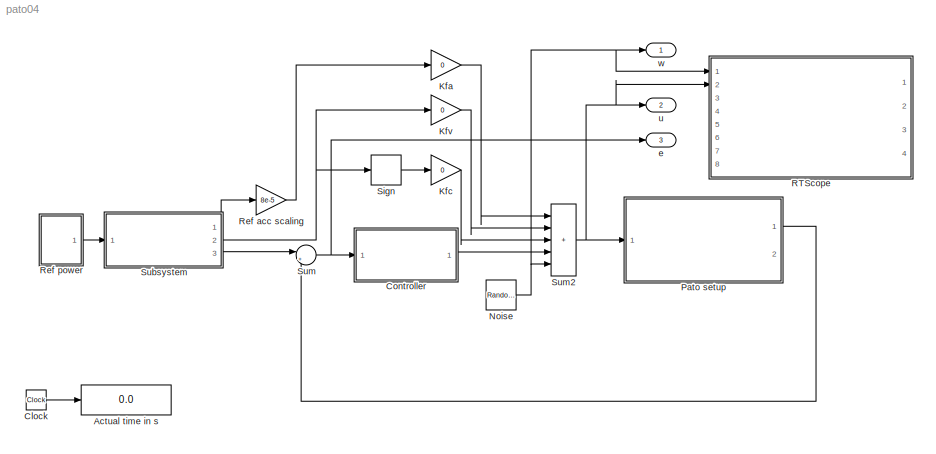
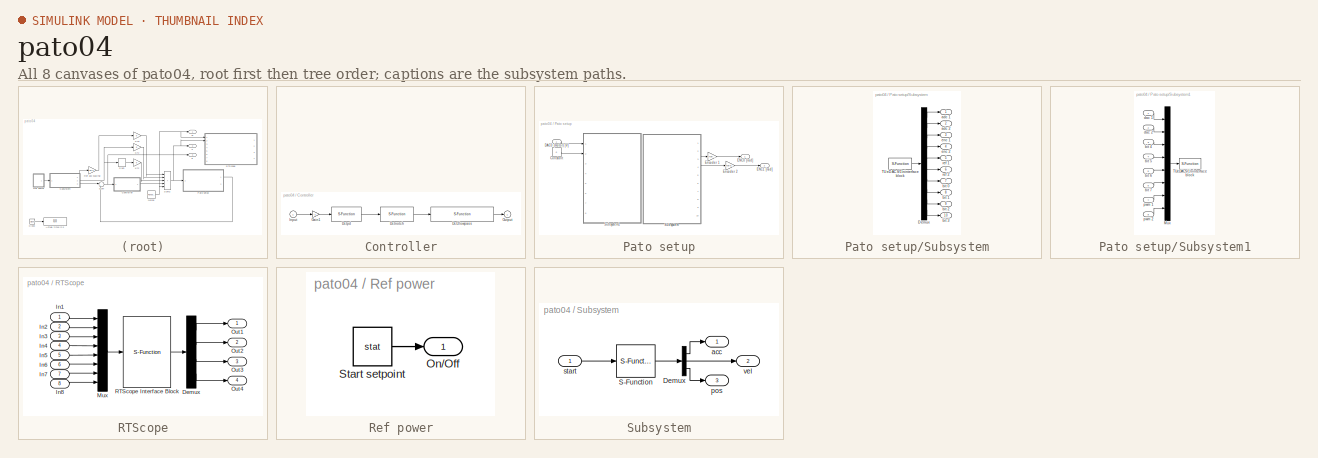
[diagram: thumbnail index - all 8 canvases of the model, root first then tree order]
MODEL pato04
KIND model
CONFIG AbsTol = auto
CONFIG FixedStep = 1/4096
CONFIG MaxStep = auto
CONFIG MinStep = auto
CONFIG RelTol = 1e-3
CONFIG Solver = ode1
CONFIG SolverMode = Auto
CONFIG StartTime = 0.0
CONFIG StopTime = 3600
BLOCK [Display] Actual time in s
  Decimation = 1
  Floating = off
  Format = short
  Ports = [1]
  SampleTime = -1
BLOCK [Clock] Clock
  Decimation = 10
  DisplayTime = off
BLOCK [SubSystem] Controller
  MaskCallbackString = |||||||
  MaskDescription = The controller consists of three filters: a Kp/Kv, a notch and a roll-off filter.\nYou can edit the parameters below.
  MaskEnableString = on,on,on,on,on,on,on,on
  MaskIconFrame = on
  MaskIconOpaque = on
  MaskIconRotate = none
  MaskIconUnits = autoscale
  MaskPromptString = Kp|Kv|Notch zeros [Hz]|Notch damping zeros [-]|Notch poles [Hz]|Notch damping poles [-]|Roll-off poles [Hz]|Roll-off damping poles [-]
  MaskStyleString = edit,edit,edit,edit,edit,edit,edit,edit
  MaskToolTipString = on,on,on,on,on,on,on,on
  MaskTunableValueString = on,on,on,on,on,on,on,on
  MaskType = Controller
  MaskValueString = 2|.01|300|0.1|300|0.1|300|0.2
  MaskVariableAliases = ,,,,,,,
  MaskVariables = Kp=@1;Kv=@2;notch_zeros=@3;notch_damping_zeros=@4;notch_poles=@5;notch_damping_poles=@6;roll_off_poles=@7;roll_off_damping_poles=@8;
  MaskVisibilityString = on,on,on,on,on,on,on,on
  Ports = [1, 1]
  RTWFcnNameOpts = Auto
  RTWFileNameOpts = Auto
  RTWSystemCode = Auto
  ShowPortLabels = on
  TreatAsAtomicUnit = off
BLOCK [S-Function] Controller/Dct2lowpass
  FunctionName = dlowpass2
  MaskCallbackString = |
  MaskDescription = This block implements a discrete time 2nd order lowpass filter.
  MaskDisplay = disp('DCT 2nd order lowpass')
  MaskEnableString = on,on
  MaskIconFrame = on
  MaskIconOpaque = on
  MaskIconRotate = none
  MaskIconUnits = autoscale
  MaskPromptString = Pole [Hz]|Damping pole [-]
  MaskStyleString = edit,edit
  MaskToolTipString = on,on
  MaskTunableValueString = on,on
  MaskType = dctools
  MaskValueString = roll_off_poles|roll_off_damping_poles
  MaskVariableAliases = ,
  MaskVariables = f_den=@1;b_den=@2;
  MaskVisibilityString = on,on
  Parameters = [f_den b_den 0.001]
  PortCounts = []
  Ports = [1, 1]
  SFunctionModules = ''
BLOCK [S-Function] Controller/Dctnotch
  FunctionName = dnotch
  MaskCallbackString = |||
  MaskDescription = This block implements a dicrete time 2nd order notch filter.
  MaskDisplay = disp('DCT notch')
  MaskEnableString = on,on,on,on
  MaskIconFrame = on
  MaskIconOpaque = on
  MaskIconRotate = none
  MaskIconUnits = autoscale
  MaskPromptString = Zero [Hz]|Damping zero [-]|Pole [Hz]|Damping pole [-]
  MaskStyleString = edit,edit,edit,edit
  MaskToolTipString = on,on,on,on
  MaskTunableValueString = on,on,on,on
  MaskType = dctools
  MaskValueString = notch_zeros|notch_damping_zeros|notch_poles|notch_damping_poles
  MaskVariableAliases = ,,,
  MaskVariables = f_num=@1;b_num=@2;f_den=@3;b_den=@4;
  MaskVisibilityString = on,on,on,on
  Parameters = [f_num b_num f_den b_den 0.001]
  PortCounts = []
  Ports = [1, 1]
  SFunctionModules = ''
BLOCK [S-Function] Controller/Dctpd
  FunctionName = dpd
  MaskCallbackString = |
  MaskDescription = This block implements a discrete time pd filter.
  MaskDisplay = disp('DCT pd')
  MaskEnableString = on,on
  MaskIconFrame = on
  MaskIconOpaque = on
  MaskIconRotate = none
  MaskIconUnits = autoscale
  MaskPromptString = Kp|Kv
  MaskStyleString = edit,edit
  MaskToolTipString = on,on
  MaskTunableValueString = on,on
  MaskType = dctools
  MaskValueString = Kp|Kv
  MaskVariableAliases = ,
  MaskVariables = kp=@1;kv=@2;
  MaskVisibilityString = on,on
  Parameters = [kp kv 0.001]
  PortCounts = []
  Ports = [1, 1]
  SFunctionModules = ''
BLOCK [Gain] Controller/Gain1
  Gain = -1
  Multiplication = Element-wise(K.*u)
  SaturateOnIntegerOverflow = on
BLOCK [Inport] Controller/Input
  Interpolate = on
  LatchInput = off
  Port = 1
BLOCK [Outport] Controller/Output
  InitialOutput = []
  OutputWhenDisabled = held
  Port = 1
BLOCK [Gain] Kfa
  Gain = 0
  Multiplication = Element-wise(K.*u)
  SaturateOnIntegerOverflow = on
BLOCK [Gain] Kfc
  Gain = 0
  Multiplication = Element-wise(K.*u)
  SaturateOnIntegerOverflow = on
BLOCK [Gain] Kfv
  Gain = 0
  Multiplication = Element-wise(K.*u)
  SaturateOnIntegerOverflow = on
BLOCK [RandomNumber] Noise
  Mean = 0
  SampleTime = 0
  Seed = 0
  Variance = 0.2
  VectorParams1D = on
BLOCK [SubSystem] Pato setup
  MaskDescription = Inc encoder positions 1-2 [rad] (see connector pannel).\n
  MaskIconFrame = off
  MaskIconOpaque = on
  MaskIconRotate = none
  MaskIconUnits = autoscale
  MaskType = Encoders
  Ports = [1, 2]
  RTWFcnNameOpts = Auto
  RTWFileNameOpts = Auto
  RTWSystemCode = Auto
  ShowPortLabels = on
  TreatAsAtomicUnit = off
BLOCK [Constant] Pato setup/Constant
  Value = 0
  VectorParams1D = on
BLOCK [Inport] Pato setup/DAC0 (motor) [V]
  Interpolate = on
  LatchInput = off
  Port = 1
BLOCK [Outport] Pato setup/ENC0 [rad]
  InitialOutput = []
  OutputWhenDisabled = held
  Port = 1
BLOCK [Outport] Pato setup/ENC1 [rad]
  InitialOutput = []
  OutputWhenDisabled = held
  Port = 2
BLOCK [Gain] Pato setup/Encoder 1
  Gain = -2*pi/(500*4)
  Multiplication = Element-wise(K.*u)
  SaturateOnIntegerOverflow = on
BLOCK [Gain] Pato setup/Encoder 2
  Gain = 2*pi/(500*4)
  Multiplication = Element-wise(K.*u)
  SaturateOnIntegerOverflow = on
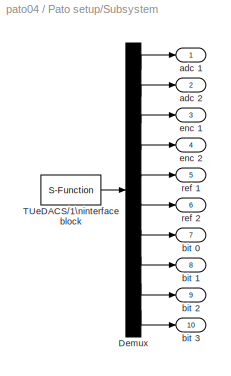
BLOCK [SubSystem] Pato setup/Subsystem
  MaskCallbackString = |||||||||
  MaskDescription = This block models the TUeDACS/1 QAD/AQI inports.\n\nQAD:\n- front panel channels are named 0/1 instead of 1/2\n- ADC input range is fixed at +/- 2.5 V\n\nAQI:\n- scalable ADC input range\n
  MaskDisplay = disp('TUeDACS/1 QAD/AQI');\ndisp('\\n\\nInports block');\n\n
  MaskEnableString = on,on,on,on,on,on,on,on,on,on
  MaskHelp = This block models the TUeDACS/1 QAD/AQI inports.
  MaskIconFrame = off
  MaskIconOpaque = off
  MaskIconRotate = none
  MaskIconUnits = autoscale
  MaskPromptString = QAD/AQI identifier|Use ADC channel 1|ADC range select channel 1 (AQI only)|Use ADC channel 2|ADC range select channel 2 (AQI only)|Use ENC channel 1|ENC function select channel 1|Use ENC channel 2|ENC function select channel 2|Use DI channels
  MaskStyleString = popup(link0|link1),checkbox,popup(+/- 10 V|+/- 5 V|+/- 2 V|+/- 1 V|+/- 0.5 V|+/- 0.2 V|+/- 0.1 V),checkbox,popup(+/- 10 V|+/- 5 V|+/- 2 V|+/- 1 V|+/- 0.5 V|+/- 0.2 V|+/- 0.1 V),checkbox,popup(Quadrature single ended|Quadrature differential (AQI only)|Event counter),checkbox,popup(Quadrature single ended|Quadrature differential (AQI only)|Event counter),checkbox
  MaskToolTipString = on,on,on,on,on,on,on,on,on,on
  MaskTunableValueString = on,on,on,on,on,on,on,on,on,on
  MaskType = TUeDACS/1 QAD/AQI Inports block
  MaskValueString = link0|off|+/- 10 V|off|+/- 10 V|on|Quadrature single ended|on|Quadrature single ended|off
  MaskVariableAliases = ,,,,,,,,,
  MaskVariables = ilink=@1;adc_active_ch1=@2;adc_range_select_ch1=@3;adc_active_ch2=@4;adc_range_select_ch2=@5;enc_active_ch1=@6;enc_funct_select_ch1=@7;enc_active_ch2=@8;enc_funct_select_ch2=@9;dio_active=@10;
  MaskVisibilityString = on,on,on,on,on,on,on,on,on,on
  Ports = [0, 10]
  RTWFcnNameOpts = Auto
  RTWFileNameOpts = Auto
  RTWSystemCode = Auto
  ShowPortLabels = on
  TreatAsAtomicUnit = off
BLOCK [Demux] Pato setup/Subsystem/Demux
  BusSelectionMode = off
  Outputs = 10
  Ports = [1, 10]
BLOCK [S-Function] Pato setup/Subsystem/TUeDACS//1\ninterface block
  FunctionName = td_inports
  Parameters = ilink, adc_active_ch1, adc_active_ch2, enc_active_ch1, enc_active_ch2, dio_active, adc_range_select_ch1, adc_range_select_ch2, enc_funct_select_ch1, enc_funct_select_ch2
  PortCounts = []
  Ports = [0, 1]
  SFunctionModules = ''
BLOCK [Outport] Pato setup/Subsystem/adc 1
  InitialOutput = []
  OutputWhenDisabled = held
  Port = 1
BLOCK [Outport] Pato setup/Subsystem/adc 2
  InitialOutput = []
  OutputWhenDisabled = held
  Port = 2
BLOCK [Outport] Pato setup/Subsystem/bit 0
  InitialOutput = []
  OutputWhenDisabled = held
  Port = 7
BLOCK [Outport] Pato setup/Subsystem/bit 1
  InitialOutput = []
  OutputWhenDisabled = held
  Port = 8
BLOCK [Outport] Pato setup/Subsystem/bit 2
  InitialOutput = []
  OutputWhenDisabled = held
  Port = 9
BLOCK [Outport] Pato setup/Subsystem/bit 3
  InitialOutput = []
  OutputWhenDisabled = held
  Port = 10
BLOCK [Outport] Pato setup/Subsystem/enc 1
  InitialOutput = []
  OutputWhenDisabled = held
  Port = 3
BLOCK [Outport] Pato setup/Subsystem/enc 2
  InitialOutput = []
  OutputWhenDisabled = held
  Port = 4
BLOCK [Outport] Pato setup/Subsystem/ref 1
  InitialOutput = []
  OutputWhenDisabled = held
  Port = 5
BLOCK [Outport] Pato setup/Subsystem/ref 2
  InitialOutput = []
  OutputWhenDisabled = held
  Port = 6
BLOCK [SubSystem] Pato setup/Subsystem1
  MaskCallbackString = |||||||||||
  MaskDescription = This block models the TUeDACS/1 QAD/AQI outports.\n\nQAD:\n- front panel channels are named 0/1 instead of 1/2\n- DAC output range is +/- 2.5 V\n\nAQI:\n- DAC output range is +/- 5V.\n- scalable ADC input range\n
  MaskDisplay = disp('TUeDACS/1 QAD/AQI');\ndisp('\\n\\nOutports block');\n\n
  MaskEnableString = on,on,on,on,on,on,on,on,on,on,on,on
  MaskHelp = This block models the TUeDACS/1 QAD/AQI outports.
  MaskIconFrame = off
  MaskIconOpaque = off
  MaskIconRotate = none
  MaskIconUnits = autoscale
  MaskPromptString = QAD/AQI identifier|Use DAC channel 1|DAC hold order select channel 1|Use DAC channel 2|DAC hold order select channel 2|Use DO channels|Use PWM channel 1 (AQI only)|PWM function select channel 1|PWM frequency select channel 1|Use PWM channel 2 (AQI only)|PWM function select channel 2|PWM frequency select channel 2
  MaskStyleString = popup(link0|link1),checkbox,popup(Zero order (SW)|First order (SW)|Second order (SW)|Third order (SW)),checkbox,popup(Zero order (SW)|First order (SW)|Second order (SW)|Third order (SW)),checkbox,checkbox,popup(Locked anti-phase PWM (0 to 1)|Sign/magnitude PWM (-1 to 1)),popup(1 Hz|10 Hz|50 Hz|100 Hz|1 kHz|10 kHz|100 kHz|1 MHz),checkbox,popup(Locked anti-phase PWM (0 to 1)|Sign/magnitude PWM (-1 t...<+63ch>
  MaskToolTipString = on,on,on,on,on,on,on,on,on,on,on,on
  MaskTunableValueString = on,on,on,on,on,on,on,on,on,on,on,on
  MaskType = TUeDACS/1 QAD/AQI Outports block
  MaskValueString = link0|on|Zero order (SW)|off|Zero order (SW)|off|off|Locked anti-phase PWM (0 to 1)|10 kHz|off|Locked anti-phase PWM (0 to 1)|10 kHz
  MaskVariableAliases = ,,,,,,,,,,,
  MaskVariables = ilink=@1;dac_active_ch1=@2;dac_hold_order_select_ch1=@3;dac_active_ch2=@4;dac_hold_order_select_ch2=@5;dio_active=@6;pwm_active_ch1=@7;pwm_funct_select_ch1=@8;pwm_freq_select_ch1=@9;pwm_active_ch2=@10;pwm_funct_select_ch2=@11;pwm_freq_select_ch2=@12;
  MaskVisibilityString = on,on,on,on,on,on,on,on,on,on,on,on
  Ports = [8]
  RTWFcnNameOpts = Auto
  RTWFileNameOpts = Auto
  RTWSystemCode = Auto
  ShowPortLabels = on
  TreatAsAtomicUnit = off
BLOCK [Mux] Pato setup/Subsystem1/Mux
  DisplayOption = bar
  Inputs = 8
  Ports = [8, 1]
BLOCK [S-Function] Pato setup/Subsystem1/TUeDACS//1\ninterface block
  FunctionName = td_outports
  Parameters = ilink, dac_active_ch1, dac_hold_order_select_ch1, dac_active_ch2, dac_hold_order_select_ch2, dio_active, pwm_active_ch1, pwm_active_ch2, pwm_funct_select_ch1, pwm_funct_select_ch2, pwm_freq_select_ch1, pwm_freq_select_ch2
  PortCounts = []
  Ports = [1]
  SFunctionModules = ''
BLOCK [Inport] Pato setup/Subsystem1/bit 4
  Interpolate = on
  LatchInput = off
  Port = 3
BLOCK [Inport] Pato setup/Subsystem1/bit 5
  Interpolate = on
  LatchInput = off
  Port = 4
BLOCK [Inport] Pato setup/Subsystem1/bit 6
  Interpolate = on
  LatchInput = off
  Port = 5
BLOCK [Inport] Pato setup/Subsystem1/bit 7
  Interpolate = on
  LatchInput = off
  Port = 6
BLOCK [Inport] Pato setup/Subsystem1/dac 1
  Interpolate = on
  LatchInput = off
  Port = 1
BLOCK [Inport] Pato setup/Subsystem1/dac 2
  Interpolate = on
  LatchInput = off
  Port = 2
BLOCK [Inport] Pato setup/Subsystem1/pwm 1
  Interpolate = on
  LatchInput = off
  Port = 7
BLOCK [Inport] Pato setup/Subsystem1/pwm 2
  Interpolate = on
  LatchInput = off
  Port = 8
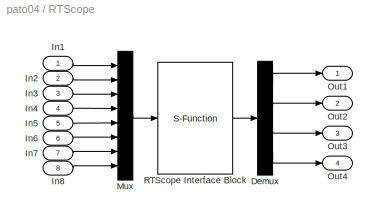
BLOCK [SubSystem] RTScope
  MaskDisplay = image(imread('rtscope2.jpg'))
  MaskIconFrame = on
  MaskIconOpaque = on
  MaskIconRotate = none
  MaskIconUnits = autoscale
  MaskType = RTScope
  OpenFcn = rtscope
  Ports = [8, 4]
  RTWFcnNameOpts = Auto
  RTWFileNameOpts = Auto
  RTWSystemCode = Auto
  ShowPortLabels = on
  TreatAsAtomicUnit = off
BLOCK [Demux] RTScope/Demux
  BusSelectionMode = off
  Outputs = 4
  Ports = [1, 4]
BLOCK [Inport] RTScope/In1
  Interpolate = on
  LatchInput = off
  Port = 1
BLOCK [Inport] RTScope/In2
  Interpolate = on
  LatchInput = off
  Port = 2
BLOCK [Inport] RTScope/In3
  Interpolate = on
  LatchInput = off
  Port = 3
BLOCK [Inport] RTScope/In4
  Interpolate = on
  LatchInput = off
  Port = 4
BLOCK [Inport] RTScope/In5
  Interpolate = on
  LatchInput = off
  Port = 5
BLOCK [Inport] RTScope/In6
  Interpolate = on
  LatchInput = off
  Port = 6
BLOCK [Inport] RTScope/In7
  Interpolate = on
  LatchInput = off
  Port = 7
BLOCK [Inport] RTScope/In8
  Interpolate = on
  LatchInput = off
  Port = 8
BLOCK [Mux] RTScope/Mux
  DisplayOption = bar
  Inputs = 8
  Ports = [8, 1]
BLOCK [Outport] RTScope/Out1
  InitialOutput = []
  OutputWhenDisabled = held
  Port = 1
BLOCK [Outport] RTScope/Out2
  InitialOutput = []
  OutputWhenDisabled = held
  Port = 2
BLOCK [Outport] RTScope/Out3
  InitialOutput = []
  OutputWhenDisabled = held
  Port = 3
BLOCK [Outport] RTScope/Out4
  InitialOutput = []
  OutputWhenDisabled = held
  Port = 4
BLOCK [S-Function] RTScope/RTScope Interface Block
  FunctionName = sf_qadscope
  OpenFcn = rtscope
  Parameters = 4000
  PortCounts = []
  Ports = [1, 1]
  SFunctionModules = ''
BLOCK [Gain] Ref acc scaling 
  Gain = 8e-5
  Multiplication = Element-wise(K.*u)
  SaturateOnIntegerOverflow = on
BLOCK [SubSystem] Ref power
  MaskEnableString = on
  MaskIconFrame = on
  MaskIconOpaque = off
  MaskIconRotate = none
  MaskIconUnits = autoscale
  MaskPromptString = Switch
  MaskStyleString = popup(On|Off)
  MaskToolTipString = on
  MaskTunableValueString = on
  MaskType = On/Off Switch
  MaskValueString = Off
  MaskVariables = stat=@1;
  MaskVisibilityString = on
  Ports = [0, 1]
  RTWFcnNameOpts = Auto
  RTWFileNameOpts = Auto
  RTWSystemCode = Auto
  ShowPortLabels = on
  TreatAsAtomicUnit = off
BLOCK [Outport] Ref power/On//Off
  InitialOutput = []
  OutputWhenDisabled = held
  Port = 1
BLOCK [Constant] Ref power/Start setpoint
  Value = stat
  VectorParams1D = on
BLOCK [Signum] Sign
BLOCK [SubSystem] Subsystem
  MaskDisplay = disp('Ref3');\n
  MaskIconFrame = off
  MaskIconOpaque = off
  MaskIconRotate = none
  MaskIconUnits = autoscale
  MaskType = Ref3
  OpenFcn = global ref_part; cb_axes 1
  Ports = [1, 3]
  RTWFcnNameOpts = Auto
  RTWFileNameOpts = Auto
  RTWSystemCode = Auto
  ShowPortLabels = on
  TreatAsAtomicUnit = off
BLOCK [Demux] Subsystem/Demux
  BusSelectionMode = off
  Outputs = 3
  Ports = [1, 3]
BLOCK [S-Function] Subsystem/S-Function
  FunctionName = ref3b
  OpenFcn = global ref_part; r3g_main
  Parameters = ref_part
  PortCounts = []
  Ports = [1, 1]
  SFunctionModules = ''
BLOCK [Outport] Subsystem/acc
  InitialOutput = []
  OutputWhenDisabled = held
  Port = 1
BLOCK [Outport] Subsystem/pos
  InitialOutput = []
  OutputWhenDisabled = held
  Port = 3
BLOCK [Inport] Subsystem/start
  Interpolate = on
  LatchInput = off
  Port = 1
BLOCK [Outport] Subsystem/vel
  InitialOutput = []
  OutputWhenDisabled = held
  Port = 2
BLOCK [Sum] Sum
  IconShape = round
  Inputs = |+-
  Ports = [2, 1]
  SaturateOnIntegerOverflow = on
BLOCK [Sum] Sum2
  Description = sumff
  IconShape = rectangular
  Inputs = |+++++
  Ports = [5, 1]
  SaturateOnIntegerOverflow = on
BLOCK [Outport] e
  InitialOutput = []
  OutputWhenDisabled = held
  Port = 3
BLOCK [Outport] u
  InitialOutput = []
  OutputWhenDisabled = held
  Port = 2
BLOCK [Outport] w
  InitialOutput = []
  OutputWhenDisabled = held
  Port = 1
LINE Clock:1 -> Actual time in s:1
LINE Controller/Dct2lowpass:1 -> Controller/Output:1
LINE Controller/Dctnotch:1 -> Controller/Dct2lowpass:1
LINE Controller/Dctpd:1 -> Controller/Dctnotch:1
LINE Controller/Gain1:1 -> Controller/Dctpd:1
LINE Controller/Input:1 -> Controller/Gain1:1
LINE Controller:1 -> Sum2:4
LINE Kfa:1 -> Sum2:1
LINE Kfc:1 -> Sum2:3
LINE Kfv:1 -> Sum2:2
NET Noise:1 -> RTScope:1, Sum2:5, w:1
LINE Pato setup/Constant:1 -> Pato setup/Subsystem1:2
LINE Pato setup/DAC0 (motor) [V]:1 -> Pato setup/Subsystem1:1
LINE Pato setup/Encoder 1:1 -> Pato setup/ENC0 [rad]:1
LINE Pato setup/Encoder 2:1 -> Pato setup/ENC1 [rad]:1
LINE Pato setup/Subsystem/Demux:1 -> Pato setup/Subsystem/adc 1:1
LINE Pato setup/Subsystem/Demux:10 -> Pato setup/Subsystem/bit 3:1
LINE Pato setup/Subsystem/Demux:2 -> Pato setup/Subsystem/adc 2:1
LINE Pato setup/Subsystem/Demux:3 -> Pato setup/Subsystem/enc 1:1
LINE Pato setup/Subsystem/Demux:4 -> Pato setup/Subsystem/enc 2:1
LINE Pato setup/Subsystem/Demux:5 -> Pato setup/Subsystem/ref 1:1
LINE Pato setup/Subsystem/Demux:6 -> Pato setup/Subsystem/ref 2:1
LINE Pato setup/Subsystem/Demux:7 -> Pato setup/Subsystem/bit 0:1
LINE Pato setup/Subsystem/Demux:8 -> Pato setup/Subsystem/bit 1:1
LINE Pato setup/Subsystem/Demux:9 -> Pato setup/Subsystem/bit 2:1
LINE Pato setup/Subsystem/TUeDACS//1\ninterface block:1 -> Pato setup/Subsystem/Demux:1
LINE Pato setup/Subsystem1/Mux:1 -> Pato setup/Subsystem1/TUeDACS//1\ninterface block:1
LINE Pato setup/Subsystem1/bit 4:1 -> Pato setup/Subsystem1/Mux:3
LINE Pato setup/Subsystem1/bit 5:1 -> Pato setup/Subsystem1/Mux:4
LINE Pato setup/Subsystem1/bit 6:1 -> Pato setup/Subsystem1/Mux:5
LINE Pato setup/Subsystem1/bit 7:1 -> Pato setup/Subsystem1/Mux:6
LINE Pato setup/Subsystem1/dac 1:1 -> Pato setup/Subsystem1/Mux:1
LINE Pato setup/Subsystem1/dac 2:1 -> Pato setup/Subsystem1/Mux:2
LINE Pato setup/Subsystem1/pwm 1:1 -> Pato setup/Subsystem1/Mux:7
LINE Pato setup/Subsystem1/pwm 2:1 -> Pato setup/Subsystem1/Mux:8
LINE Pato setup/Subsystem:3 -> Pato setup/Encoder 1:1
LINE Pato setup/Subsystem:4 -> Pato setup/Encoder 2:1
LINE Pato setup:1 -> Sum:2
LINE RTScope/Demux:1 -> RTScope/Out1:1
LINE RTScope/Demux:2 -> RTScope/Out2:1
LINE RTScope/Demux:3 -> RTScope/Out3:1
LINE RTScope/Demux:4 -> RTScope/Out4:1
LINE RTScope/In1:1 -> RTScope/Mux:1
LINE RTScope/In2:1 -> RTScope/Mux:2
LINE RTScope/In3:1 -> RTScope/Mux:3
LINE RTScope/In4:1 -> RTScope/Mux:4
LINE RTScope/In5:1 -> RTScope/Mux:5
LINE RTScope/In6:1 -> RTScope/Mux:6
LINE RTScope/In7:1 -> RTScope/Mux:7
LINE RTScope/In8:1 -> RTScope/Mux:8
LINE RTScope/Mux:1 -> RTScope/RTScope Interface Block:1
LINE RTScope/RTScope Interface Block:1 -> RTScope/Demux:1
LINE Ref acc scaling :1 -> Kfa:1
LINE Ref power/Start setpoint:1 -> Ref power/On//Off:1
LINE Ref power:1 -> Subsystem:1
LINE Sign:1 -> Kfc:1
LINE Subsystem/Demux:1 -> Subsystem/acc:1
LINE Subsystem/Demux:2 -> Subsystem/vel:1
LINE Subsystem/Demux:3 -> Subsystem/pos:1
LINE Subsystem/S-Function:1 -> Subsystem/Demux:1
LINE Subsystem/start:1 -> Subsystem/S-Function:1
LINE Subsystem:1 -> Ref acc scaling :1
NET Subsystem:2 -> Kfv:1, Sign:1
LINE Subsystem:3 -> Sum:1
NET Sum2:1 -> Pato setup:1, RTScope:2, u:1
NET Sum:1 -> Controller:1, e:1
note: NET lines group one-source signal fan-out (src -> all destinations, sorted); 1:1 wires keep LINE
